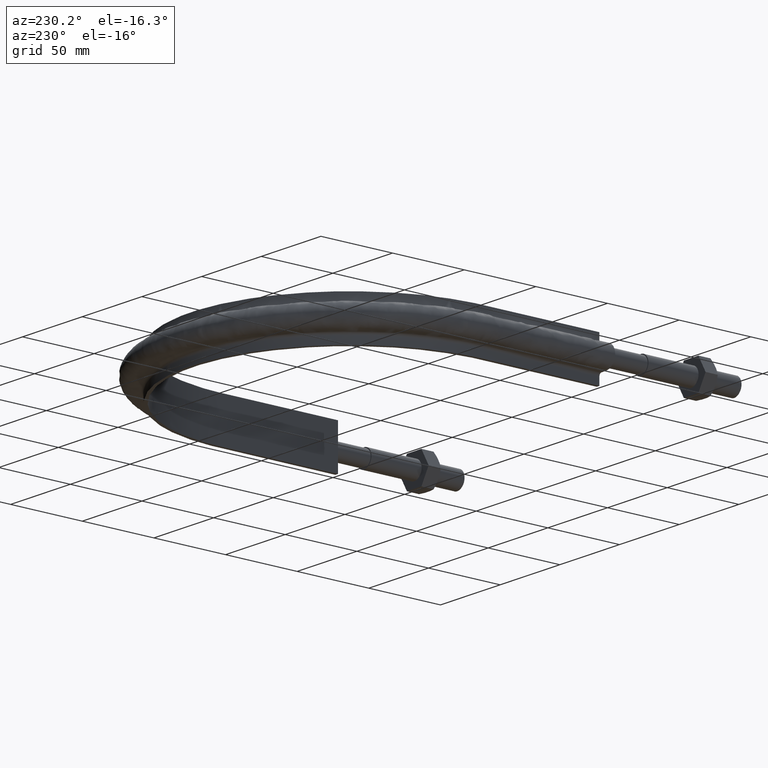
[diagram: clean part render]
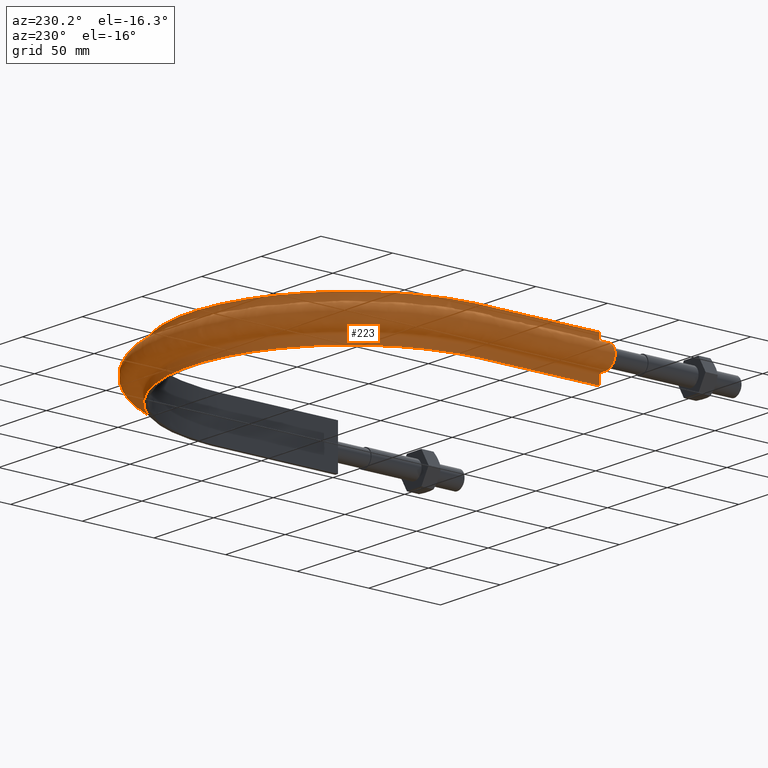
[diagram: same view with one face highlighted and labeled with its STEP entity id]
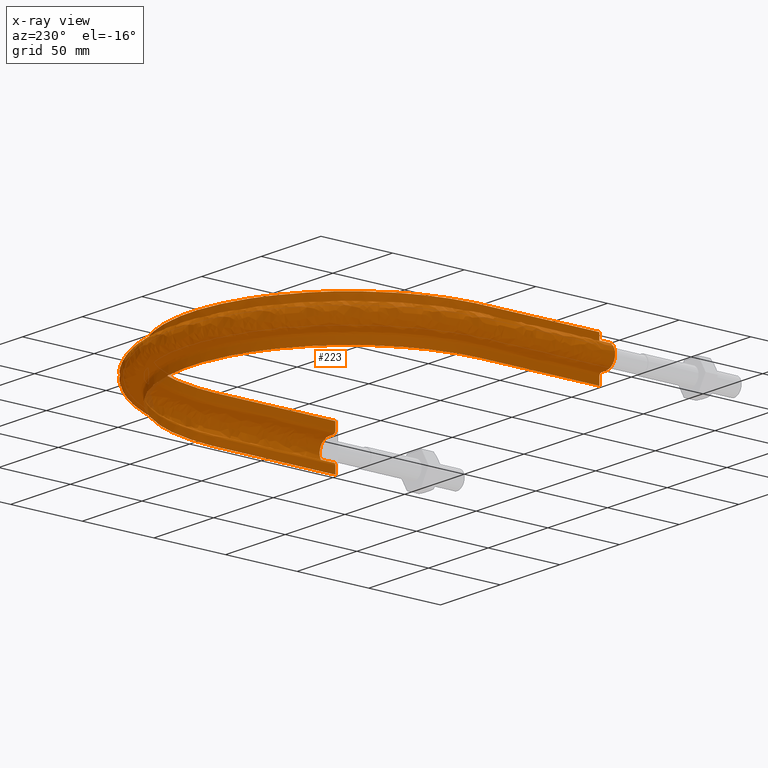
[diagram: x-ray of the same camera — body ghosted, the highlighted face saturated]
A machine part, auxiliary view. The second image highlights one B-rep face of the part: STEP entity #223.
The next image is the same camera in x-ray: the body ghosted, the highlighted face saturated — about 0% of this face is hidden behind the body in this view.
In plain terms, the highlighted face is a freeform B-spline surface patch.
Its self-contained STEP definition (entity closure, byte-faithful):
#223 = ADVANCED_FACE( '', ( #269 ), #270, .F. );
#269 = FACE_OUTER_BOUND( '', #372, .T. );
#270 = B_SPLINE_SURFACE_WITH_KNOTS( '', 3, 3, ( ( #373, #374, #375, #376, #377, #378, #379, #380, #381, #382, #383, #384, #385, #386, #387, #388, #389 ), ( #390, #391, #392, #393, #394, #395, #396, #397, #398, #399, #400, #401, #402, #403, #404, #405, #406 ), ( #407, #408, #409, #410, #411, #412, #413, #414, #415, #416, #417, #418, #419, #420, #421, #422, #423 ), ( #424, #425, #426, #427, #428, #429, #430, #431, #432, #433, #434, #435, #436, #437, #438, #439, #440 ), ( #441, #442, #443, #444, #445, #446, #447, #448, #449, #450, #451, #452, #453, #454, #455, #456, #457 ), ( #458, #459, #460, #461, #462, #463, #464, #465, #466, #467, #468, #469, #470, #471, #472, #473, #474 ), ( #475, #476, #477, #478, #479, #480, #481, #482, #483, #484, #485, #486, #487, #488, #489, #490, #491 ), ( #492, #493, #494, #495, #496, #497, #498, #499, #500, #501, #502, #503, #504, #505, #506, #507, #508 ), ( #509, #510, #511, #512, #513, #514, #515, #516, #517, #518, #519, #520, #521, #522, #523, #524, #525 ), ( #526, #527, #528, #529, #530, #531, #532, #533, #534, #535, #536, #537, #538, #539, #540, #541, #542 ), ( #543, #544, #545, #546, #547, #548, #549, #550, #551, #552, #553, #554, #555, #556, #557, #558, #559 ), ( #560, #561, #562, #563, #564, #565, #566, #567, #568, #569, #570, #571, #572, #573, #574, #575, #576 ), ( #577, #578, #579, #580, #581, #582, #583, #584, #585, #586, #587, #588, #589, #590, #591, #592, #593 ), ( #594, #595, #596, #597, #598, #599, #600, #601, #602, #603, #604, #605, #606, #607, #608, #609, #610 ), ( #611, #612, #613, #614, #615, #616, #617, #618, #619, #620, #621, #622, #623, #624, #625, #626, #627 ), ( #628, #629, #630, #631, #632, #633, #634, #635, #636, #637, #638, #639, #640, #641, #642, #643, #644 ), ( #645, #646, #647, #648, #649, #650, #651, #652, #653, #654, #655, #656, #657, #658, #659, #660, #661 ), ( #662, #663, #664, #665, #666, #667, #668, #669, #670, #671, #672, #673, #674, #675, #676, #677, #678 ), ( #679, #680, #681, #682, #683, #684, #685, #686, #687, #688, #689, #690, #691, #692, #693, #694, #695 ), ( #696, #697, #698, #699, #700, #701, #702, #703, #704, #705, #706, #707, #708, #709, #710, #711, #712 ), ( #713, #714, #715, #716, #717, #718, #719, #720, #721, #722, #723, #724, #725, #726, #727, #728, #729 ), ( #730, #731, #732, #733, #734, #735, #736, #737, #738, #739, #740, #741, #742, #743, #744, #745, #746 ), ( #747, #748, #749, #750, #751, #752, #753, #754, #755, #756, #757, #758, #759, #760, #761, #762, #763 ), ( #764, #765, #766, #767, #768, #769, #770, #771, #772, #773, #774, #775, #776, #777, #778, #779, #780 ), ( #781, #782, #783, #784, #785, #786, #787, #788, #789, #790, #791, #792, #793, #794, #795, #796, #797 ), ( #798, #799, #800, #801, #802, #803, #804, #805, #806, #807, #808, #809, #810, #811, #812, #813, #814 ), ( #815, #816, #817, #818, #819, #820, #821, #822, #823, #824, #825, #826, #827, #828, #829, #830, #831 ), ( #832, #833, #834, #835, #836, #837, #838, #839, #840, #841, #842, #843, #844, #845, #846, #847, #848 ), ( #849, #850, #851, #852, #853, #854, #855, #856, #857, #858, #859, #860, #861, #862, #863, #864, #865 ), ( #866, #867, #868, #869, #870, #871, #872, #873, #874, #875, #876, #877, #878, #879, #880, #881, #882 ), ( #883, #884, #885, #886, #887, #888, #889, #890, #891, #892, #893, #894, #895, #896, #897, #898, #899 ) ), .UNSPECIFIED., .F., .F., .F., ( 4, 3, 1, 1, 1, 3, 3, 1, 1, 1, 3, 3, 1, 1, 1, 3, 4 ), ( 4, 3, 1, 1, 1, 1, 1, 1, 1, 3, 4 ), ( 0.105263157894737, 0.157894736842105, 0.210526315789474, 0.263157894736842, 0.315789473684211, 0.368421052631579, 0.421052631578947, 0.473684210526316, 0.526315789473684, 0.578947368421053, 0.631578947368421, 0.684210526315789, 0.736842105263158, 0.789473684210526, 0.842105263157895, 0.894736842105263, 0.947368421052632 ), ( 0.000000000000000, 1.00000000000000, 2.00000000000000, 3.00000000000000, 4.00000000000000, 5.00000000000000, 6.00000000000000, 7.00000000000000, 8.00000000000000, 9.00000000000000, 10.0000000000000 ), .UNSPECIFIED. );
#372 = EDGE_LOOP( '', ( #1407, #1408, #1409, #1410 ) );
#373 = CARTESIAN_POINT( '', ( 110.600000000000, 89.5000000000000, -15.0000000000000 ) );
#374 = CARTESIAN_POINT( '', ( 110.600000000000, 116.866666666667, -15.0000000000000 ) );
#375 = CARTESIAN_POINT( '', ( 110.600000000000, 144.233333333333, -15.0000000000000 ) );
#376 = CARTESIAN_POINT( '', ( 110.600000000000, 171.600000000000, -15.0000000000000 ) );
#377 = CARTESIAN_POINT( '', ( 110.600000000000, 186.066236657480, -15.0000000000000 ) );
#378 = CARTESIAN_POINT( '', ( 104.841264996974, 215.031001602308, -15.0000000000000 ) );
#379 = CARTESIAN_POINT( '', ( 80.2420302850801, 251.840865123178, -15.0000000000000 ) );
#380 = CARTESIAN_POINT( '', ( 43.4266738580984, 276.441597900375, -15.0000000000000 ) );
#381 = CARTESIAN_POINT( '', ( 8.69526843741250E-014, 285.079201049813, -15.0000000000000 ) );
#382 = CARTESIAN_POINT( '', ( -43.4266738580983, 276.441597900375, -15.0000000000000 ) );
#383 = CARTESIAN_POINT( '', ( -80.2420302850801, 251.840865123178, -15.0000000000000 ) );
#384 = CARTESIAN_POINT( '', ( -104.841264996974, 215.031001602308, -15.0000000000000 ) );
#385 = CARTESIAN_POINT( '', ( -110.600000000000, 186.066236657480, -15.0000000000000 ) );
#386 = CARTESIAN_POINT( '', ( -110.600000000000, 171.600000000000, -15.0000000000000 ) );
#387 = CARTESIAN_POINT( '', ( -110.600000000000, 144.233333333333, -15.0000000000000 ) );
#388 = CARTESIAN_POINT( '', ( -110.600000000000, 116.866666666667, -15.0000000000000 ) );
#389 = CARTESIAN_POINT( '', ( -110.600000000000, 89.5000000000001, -15.0000000000000 ) );
#390 = CARTESIAN_POINT( '', ( 110.600000000000, 89.5000000000000, -13.2666666666667 ) );
#391 = CARTESIAN_POINT( '', ( 110.600000000000, 116.866666666667, -13.2666666666667 ) );
#392 = CARTESIAN_POINT( '', ( 110.600000000000, 144.233333333333, -13.2666666666667 ) );
#393 = CARTESIAN_POINT( '', ( 110.600000000000, 171.600000000000, -13.2666666666667 ) );
#394 = CARTESIAN_POINT( '', ( 110.600000000000, 186.066236657480, -13.2666666666667 ) );
#395 = CARTESIAN_POINT( '', ( 104.841264996974, 215.031001602308, -13.2666666666667 ) );
#396 = CARTESIAN_POINT( '', ( 80.2420302850802, 251.840865123178, -13.2666666666667 ) );
#397 = CARTESIAN_POINT( '', ( 43.4266738580984, 276.441597900375, -13.2666666666667 ) );
#398 = CARTESIAN_POINT( '', ( 8.86874078501018E-014, 285.079201049813, -13.2666666666667 ) );
#399 = CARTESIAN_POINT( '', ( -43.4266738580984, 276.441597900375, -13.2666666666667 ) );
#400 = CARTESIAN_POINT( '', ( -80.2420302850801, 251.840865123178, -13.2666666666667 ) );
#401 = CARTESIAN_POINT( '', ( -104.841264996974, 215.031001602308, -13.2666666666667 ) );
#402 = CARTESIAN_POINT( '', ( -110.600000000000, 186.066236657480, -13.2666666666667 ) );
#403 = CARTESIAN_POINT( '', ( -110.600000000000, 171.600000000000, -13.2666666666667 ) );
#404 = CARTESIAN_POINT( '', ( -110.600000000000, 144.233333333333, -13.2666666666667 ) );
#405 = CARTESIAN_POINT( '', ( -110.600000000000, 116.866666666667, -13.2666666666667 ) );
#406 = CARTESIAN_POINT( '', ( -110.600000000000, 89.5000000000001, -13.2666666666667 ) );
#407 = CARTESIAN_POINT( '', ( 110.600000000000, 89.5000000000000, -11.5333333333333 ) );
#408 = CARTESIAN_POINT( '', ( 110.600000000000, 116.866666666667, -11.5333333333333 ) );
#409 = CARTESIAN_POINT( '', ( 110.600000000000, 144.233333333333, -11.5333333333333 ) );
#410 = CARTESIAN_POINT( '', ( 110.600000000000, 171.600000000000, -11.5333333333333 ) );
#411 = CARTESIAN_POINT( '', ( 110.600000000000, 186.066236657480, -11.5333333333333 ) );
#412 = CARTESIAN_POINT( '', ( 104.841264996974, 215.031001602308, -11.5333333333333 ) );
#413 = CARTESIAN_POINT( '', ( 80.2420302850802, 251.840865123178, -11.5333333333333 ) );
#414 = CARTESIAN_POINT( '', ( 43.4266738580984, 276.441597900375, -11.5333333333333 ) );
#415 = CARTESIAN_POINT( '', ( 8.34832374221713E-014, 285.079201049813, -11.5333333333333 ) );
#416 = CARTESIAN_POINT( '', ( -43.4266738580983, 276.441597900375, -11.5333333333333 ) );
#417 = CARTESIAN_POINT( '', ( -80.2420302850801, 251.840865123178, -11.5333333333333 ) );
#418 = CARTESIAN_POINT( '', ( -104.841264996974, 215.031001602308, -11.5333333333333 ) );
#419 = CARTESIAN_POINT( '', ( -110.600000000000, 186.066236657480, -11.5333333333333 ) );
#420 = CARTESIAN_POINT( '', ( -110.600000000000, 171.600000000000, -11.5333333333333 ) );
#421 = CARTESIAN_POINT( '', ( -110.600000000000, 144.233333333333, -11.5333333333333 ) );
#422 = CARTESIAN_POINT( '', ( -110.600000000000, 116.866666666667, -11.5333333333333 ) );
#423 = CARTESIAN_POINT( '', ( -110.600000000000, 89.5000000000001, -11.5333333333333 ) );
#424 = CARTESIAN_POINT( '', ( 110.600000000000, 89.5000000000000, -9.79999999999999 ) );
#425 = CARTESIAN_POINT( '', ( 110.600000000000, 116.866666666667, -9.79999999999999 ) );
#426 = CARTESIAN_POINT( '', ( 110.600000000000, 144.233333333333, -9.79999999999999 ) );
#427 = CARTESIAN_POINT( '', ( 110.600000000000, 171.600000000000, -9.79999999999999 ) );
#428 = CARTESIAN_POINT( '', ( 110.600000000000, 186.066236657480, -9.79999999999999 ) );
#429 = CARTESIAN_POINT( '', ( 104.841264996974, 215.031001602308, -9.79999999999999 ) );
#430 = CARTESIAN_POINT( '', ( 80.2420302850802, 251.840865123178, -9.79999999999999 ) );
#431 = CARTESIAN_POINT( '', ( 43.4266738580984, 276.441597900375, -9.80000000000000 ) );
#432 = CARTESIAN_POINT( '', ( 8.00137904702177E-014, 285.079201049813, -9.79999999999999 ) );
#433 = CARTESIAN_POINT( '', ( -43.4266738580983, 276.441597900375, -9.79999999999999 ) );
#434 = CARTESIAN_POINT( '', ( -80.2420302850801, 251.840865123178, -9.79999999999999 ) );
#435 = CARTESIAN_POINT( '', ( -104.841264996974, 215.031001602308, -9.79999999999999 ) );
#436 = CARTESIAN_POINT( '', ( -110.600000000000, 186.066236657480, -9.79999999999999 ) );
#437 = CARTESIAN_POINT( '', ( -110.600000000000, 171.600000000000, -9.79999999999999 ) );
#438 = CARTESIAN_POINT( '', ( -110.600000000000, 144.233333333333, -9.79999999999999 ) );
#439 = CARTESIAN_POINT( '', ( -110.600000000000, 116.866666666667, -9.79999999999999 ) );
#440 = CARTESIAN_POINT( '', ( -110.600000000000, 89.5000000000001, -9.79999999999999 ) );
#441 = CARTESIAN_POINT( '', ( 110.600000000000, 89.5000000000000, -9.53823584172332 ) );
#442 = CARTESIAN_POINT( '', ( 110.600000000000, 116.866666666667, -9.53823584172332 ) );
#443 = CARTESIAN_POINT( '', ( 110.600000000000, 144.233333333333, -9.53823584172332 ) );
#444 = CARTESIAN_POINT( '', ( 110.600000000000, 171.600000000000, -9.53823584172332 ) );
#445 = CARTESIAN_POINT( '', ( 110.600000000000, 186.066236657480, -9.53823584172332 ) );
#446 = CARTESIAN_POINT( '', ( 104.841264996974, 215.031001602308, -9.53823584172333 ) );
#447 = CARTESIAN_POINT( '', ( 80.2420302850802, 251.840865123178, -9.53823584172332 ) );
#448 = CARTESIAN_POINT( '', ( 43.4266738580984, 276.441597900375, -9.53823584172333 ) );
#449 = CARTESIAN_POINT( '', ( 8.34832374221713E-014, 285.079201049813, -9.53823584172332 ) );
#450 = CARTESIAN_POINT( '', ( -43.4266738580983, 276.441597900375, -9.53823584172332 ) );
#451 = CARTESIAN_POINT( '', ( -80.2420302850801, 251.840865123178, -9.53823584172333 ) );
#452 = CARTESIAN_POINT( '', ( -104.841264996974, 215.031001602308, -9.53823584172333 ) );
#453 = CARTESIAN_POINT( '', ( -110.600000000000, 186.066236657480, -9.53823584172332 ) );
#454 = CARTESIAN_POINT( '', ( -110.600000000000, 171.600000000000, -9.53823584172332 ) );
#455 = CARTESIAN_POINT( '', ( -110.600000000000, 144.233333333333, -9.53823584172332 ) );
#456 = CARTESIAN_POINT( '', ( -110.600000000000, 116.866666666667, -9.53823584172332 ) );
#457 = CARTESIAN_POINT( '', ( -110.600000000000, 89.5000000000001, -9.53823584172332 ) );
#458 = CARTESIAN_POINT( '', ( 110.704136256836, 89.5000000000000, -9.01470752517000 ) );
#459 = CARTESIAN_POINT( '', ( 110.704136256836, 116.866666666667, -9.01470752517000 ) );
#460 = CARTESIAN_POINT( '', ( 110.704136256836, 144.233333333333, -9.01470752517000 ) );
#461 = CARTESIAN_POINT( '', ( 110.704136256836, 171.600000000000, -9.01470752517000 ) );
#462 = CARTESIAN_POINT( '', ( 110.704136256836, 186.080045983731, -9.01470752517000 ) );
#463 = CARTESIAN_POINT( '', ( 104.939979073816, 215.071806853384, -9.01470752517000 ) );
#464 = CARTESIAN_POINT( '', ( 80.3175827685775, 251.916440076230, -9.01470752517000 ) );
#465 = CARTESIAN_POINT( '', ( 43.4675625675235, 276.540305557344, -9.01470752517000 ) );
#466 = CARTESIAN_POINT( '', ( 8.69657693611979E-014, 285.186051606582, -9.01470752517000 ) );
#467 = CARTESIAN_POINT( '', ( -43.4675625675235, 276.540305557344, -9.01470752517000 ) );
#468 = CARTESIAN_POINT( '', ( -80.3175827685774, 251.916440076230, -9.01470752517000 ) );
#469 = CARTESIAN_POINT( '', ( -104.939979073816, 215.071806853384, -9.01470752517000 ) );
#470 = CARTESIAN_POINT( '', ( -110.704136256836, 186.080045983731, -9.01470752517000 ) );
#471 = CARTESIAN_POINT( '', ( -110.704136256836, 171.600000000000, -9.01470752517000 ) );
#472 = CARTESIAN_POINT( '', ( -110.704136256836, 144.233333333333, -9.01470752517000 ) );
#473 = CARTESIAN_POINT( '', ( -110.704136256836, 116.866666666667, -9.01470752517000 ) );
#474 = CARTESIAN_POINT( '', ( -110.704136256836, 89.5000000000001, -9.01470752517000 ) );
#475 = CARTESIAN_POINT( '', ( 111.148968710939, 89.5000000000000, -8.34896871093886 ) );
#476 = CARTESIAN_POINT( '', ( 111.148968710939, 116.866666666667, -8.34896871093886 ) );
#477 = CARTESIAN_POINT( '', ( 111.148968710939, 144.233333333333, -8.34896871093886 ) );
#478 = CARTESIAN_POINT( '', ( 111.148968710939, 171.600000000000, -8.34896871093886 ) );
#479 = CARTESIAN_POINT( '', ( 111.148968710939, 186.139034434753, -8.34896871093886 ) );
#480 = CARTESIAN_POINT( '', ( 105.361649934575, 215.246112138864, -8.34896871093887 ) );
#481 = CARTESIAN_POINT( '', ( 80.6403156732241, 252.239268962697, -8.34896871093886 ) );
#482 = CARTESIAN_POINT( '', ( 43.6422243569071, 276.961948994725, -8.34896871093887 ) );
#483 = CARTESIAN_POINT( '', ( 8.18174932690964E-014, 285.642478569046, -8.34896871093886 ) );
#484 = CARTESIAN_POINT( '', ( -43.6422243569071, 276.961948994725, -8.34896871093886 ) );
#485 = CARTESIAN_POINT( '', ( -80.6403156732240, 252.239268962697, -8.34896871093887 ) );
#486 = CARTESIAN_POINT( '', ( -105.361649934575, 215.246112138864, -8.34896871093886 ) );
#487 = CARTESIAN_POINT( '', ( -111.148968710939, 186.139034434753, -8.34896871093886 ) );
#488 = CARTESIAN_POINT( '', ( -111.148968710939, 171.600000000000, -8.34896871093886 ) );
#489 = CARTESIAN_POINT( '', ( -111.148968710939, 144.233333333333, -8.34896871093886 ) );
#490 = CARTESIAN_POINT( '', ( -111.148968710939, 116.866666666667, -8.34896871093886 ) );
#491 = CARTESIAN_POINT( '', ( -111.148968710939, 89.5000000000001, -8.34896871093886 ) );
#492 = CARTESIAN_POINT( '', ( 111.814707525170, 89.5000000000000, -7.90413625683590 ) );
#493 = CARTESIAN_POINT( '', ( 111.814707525170, 116.866666666667, -7.90413625683590 ) );
#494 = CARTESIAN_POINT( '', ( 111.814707525170, 144.233333333333, -7.90413625683590 ) );
#495 = CARTESIAN_POINT( '', ( 111.814707525170, 171.600000000000, -7.90413625683590 ) );
#496 = CARTESIAN_POINT( '', ( 111.814707525170, 186.227316890483, -7.90413625683590 ) );
#497 = CARTESIAN_POINT( '', ( 105.992724974734, 215.506978433578, -7.90413625683590 ) );
#498 = CARTESIAN_POINT( '', ( 81.1233195981200, 252.722416534538, -7.90413625683590 ) );
#499 = CARTESIAN_POINT( '', ( 43.9036241974161, 277.592982992900, -7.90413625683590 ) );
#500 = CARTESIAN_POINT( '', ( 8.01664215782215E-014, 286.325569791305, -7.90413625683590 ) );
#501 = CARTESIAN_POINT( '', ( -43.9036241974160, 277.592982992900, -7.90413625683589 ) );
#502 = CARTESIAN_POINT( '', ( -81.1233195981199, 252.722416534538, -7.90413625683590 ) );
#503 = CARTESIAN_POINT( '', ( -105.992724974733, 215.506978433578, -7.90413625683590 ) );
#504 = CARTESIAN_POINT( '', ( -111.814707525170, 186.227316890483, -7.90413625683590 ) );
#505 = CARTESIAN_POINT( '', ( -111.814707525170, 171.600000000000, -7.90413625683590 ) );
#506 = CARTESIAN_POINT( '', ( -111.814707525170, 144.233333333333, -7.90413625683590 ) );
#507 = CARTESIAN_POINT( '', ( -111.814707525170, 116.866666666667, -7.90413625683590 ) );
#508 = CARTESIAN_POINT( '', ( -111.814707525170, 89.5000000000001, -7.90413625683590 ) );
#509 = CARTESIAN_POINT( '', ( 112.338235841723, 89.5000000000000, -7.79999999999999 ) );
#510 = CARTESIAN_POINT( '', ( 112.338235841723, 116.866666666667, -7.79999999999999 ) );
#511 = CARTESIAN_POINT( '', ( 112.338235841723, 144.233333333333, -7.79999999999999 ) );
#512 = CARTESIAN_POINT( '', ( 112.338235841723, 171.600000000000, -7.79999999999999 ) );
#513 = CARTESIAN_POINT( '', ( 112.338235841723, 186.296741061707, -7.79999999999999 ) );
#514 = CARTESIAN_POINT( '', ( 106.488994151670, 215.712120283800, -7.79999999999999 ) );
#515 = CARTESIAN_POINT( '', ( 81.5031475821342, 253.102357480635, -7.79999999999999 ) );
#516 = CARTESIAN_POINT( '', ( 44.1091856210909, 278.089219894955, -7.79999999999999 ) );
#517 = CARTESIAN_POINT( '', ( 7.50280338225567E-014, 286.862743815107, -7.79999999999999 ) );
#518 = CARTESIAN_POINT( '', ( -44.1091856210909, 278.089219894955, -7.79999999999998 ) );
#519 = CARTESIAN_POINT( '', ( -81.5031475821342, 253.102357480635, -7.79999999999999 ) );
#520 = CARTESIAN_POINT( '', ( -106.488994151670, 215.712120283800, -7.79999999999999 ) );
#521 = CARTESIAN_POINT( '', ( -112.338235841723, 186.296741061707, -7.79999999999999 ) );
#522 = CARTESIAN_POINT( '', ( -112.338235841723, 171.600000000000, -7.79999999999999 ) );
#523 = CARTESIAN_POINT( '', ( -112.338235841723, 144.233333333333, -7.79999999999999 ) );
#524 = CARTESIAN_POINT( '', ( -112.338235841723, 116.866666666667, -7.79999999999999 ) );
#525 = CARTESIAN_POINT( '', ( -112.338235841723, 89.5000000000001, -7.79999999999999 ) );
#526 = CARTESIAN_POINT( '', ( 112.600000000000, 89.5000000000000, -7.79999999999999 ) );
#527 = CARTESIAN_POINT( '', ( 112.600000000000, 116.866666666667, -7.79999999999999 ) );
#528 = CARTESIAN_POINT( '', ( 112.600000000000, 144.233333333333, -7.79999999999999 ) );
#529 = CARTESIAN_POINT( '', ( 112.600000000000, 171.600000000000, -7.79999999999999 ) );
#530 = CARTESIAN_POINT( '', ( 112.600000000000, 186.331453147319, -7.79999999999999 ) );
#531 = CARTESIAN_POINT( '', ( 106.737128740138, 215.814691208912, -7.79999999999999 ) );
#532 = CARTESIAN_POINT( '', ( 81.6930615741413, 253.292327953684, -7.79999999999999 ) );
#533 = CARTESIAN_POINT( '', ( 44.2119663329284, 278.337338345983, -7.79999999999999 ) );
#534 = CARTESIAN_POINT( '', ( 7.85303721106431E-014, 287.131330827008, -7.79999999999998 ) );
#535 = CARTESIAN_POINT( '', ( -44.2119663329283, 278.337338345983, -7.79999999999998 ) );
#536 = CARTESIAN_POINT( '', ( -81.6930615741412, 253.292327953684, -7.79999999999999 ) );
#537 = CARTESIAN_POINT( '', ( -106.737128740138, 215.814691208912, -7.79999999999999 ) );
#538 = CARTESIAN_POINT( '', ( -112.600000000000, 186.331453147319, -7.79999999999999 ) );
#539 = CARTESIAN_POINT( '', ( -112.600000000000, 171.600000000000, -7.79999999999999 ) );
#540 = CARTESIAN_POINT( '', ( -112.600000000000, 144.233333333333, -7.79999999999999 ) );
#541 = CARTESIAN_POINT( '', ( -112.600000000000, 116.866666666667, -7.79999999999999 ) );
#542 = CARTESIAN_POINT( '', ( -112.600000000000, 89.5000000000001, -7.79999999999999 ) );
#543 = CARTESIAN_POINT( '', ( 113.733333333333, 89.5000000000000, -7.79999999999999 ) );
#544 = CARTESIAN_POINT( '', ( 113.733333333333, 116.866666666667, -7.79999999999999 ) );
#545 = CARTESIAN_POINT( '', ( 113.733333333333, 144.233333333333, -7.79999999999999 ) );
#546 = CARTESIAN_POINT( '', ( 113.733333333333, 171.600000000000, -7.79999999999999 ) );
#547 = CARTESIAN_POINT( '', ( 113.733333333333, 186.481742491562, -7.79999999999999 ) );
#548 = CARTESIAN_POINT( '', ( 107.811451527931, 216.258781985988, -7.80000000000000 ) );
#549 = CARTESIAN_POINT( '', ( 82.5153126379426, 254.114823557638, -7.79999999999999 ) );
#550 = CARTESIAN_POINT( '', ( 44.6569654019987, 279.411591265161, -7.80000000000000 ) );
#551 = CARTESIAN_POINT( '', ( 8.56116722471783E-014, 288.294204367419, -7.79999999999999 ) );
#552 = CARTESIAN_POINT( '', ( -44.6569654019987, 279.411591265161, -7.79999999999999 ) );
#553 = CARTESIAN_POINT( '', ( -82.5153126379425, 254.114823557638, -7.80000000000000 ) );
#554 = CARTESIAN_POINT( '', ( -107.811451527931, 216.258781985988, -7.79999999999999 ) );
#555 = CARTESIAN_POINT( '', ( -113.733333333333, 186.481742491562, -7.79999999999999 ) );
#556 = CARTESIAN_POINT( '', ( -113.733333333333, 171.600000000000, -7.79999999999999 ) );
#557 = CARTESIAN_POINT( '', ( -113.733333333333, 144.233333333333, -7.79999999999999 ) );
#558 = CARTESIAN_POINT( '', ( -113.733333333333, 116.866666666667, -7.79999999999999 ) );
#559 = CARTESIAN_POINT( '', ( -113.733333333333, 89.5000000000001, -7.79999999999999 ) );
#560 = CARTESIAN_POINT( '', ( 114.866666666667, 89.5000000000000, -7.79999999999999 ) );
#561 = CARTESIAN_POINT( '', ( 114.866666666667, 116.866666666667, -7.79999999999999 ) );
#562 = CARTESIAN_POINT( '', ( 114.866666666667, 144.233333333333, -7.79999999999999 ) );
#563 = CARTESIAN_POINT( '', ( 114.866666666667, 171.600000000000, -7.79999999999999 ) );
#564 = CARTESIAN_POINT( '', ( 114.866666666667, 186.632031835804, -7.79999999999999 ) );
#565 = CARTESIAN_POINT( '', ( 108.885774315724, 216.702872763064, -7.80000000000000 ) );
#566 = CARTESIAN_POINT( '', ( 83.3375637017439, 254.937319161592, -7.79999999999999 ) );
#567 = CARTESIAN_POINT( '', ( 45.1019644710690, 280.485844184339, -7.80000000000000 ) );
#568 = CARTESIAN_POINT( '', ( 8.40193550038294E-014, 289.457077907830, -7.79999999999999 ) );
#569 = CARTESIAN_POINT( '', ( -45.1019644710690, 280.485844184339, -7.79999999999999 ) );
#570 = CARTESIAN_POINT( '', ( -83.3375637017439, 254.937319161591, -7.80000000000000 ) );
#571 = CARTESIAN_POINT( '', ( -108.885774315724, 216.702872763064, -7.79999999999999 ) );
#572 = CARTESIAN_POINT( '', ( -114.866666666667, 186.632031835804, -7.79999999999999 ) );
#573 = CARTESIAN_POINT( '', ( -114.866666666667, 171.600000000000, -7.79999999999999 ) );
#574 = CARTESIAN_POINT( '', ( -114.866666666667, 144.233333333333, -7.79999999999999 ) );
#575 = CARTESIAN_POINT( '', ( -114.866666666667, 116.866666666667, -7.79999999999999 ) );
#576 = CARTESIAN_POINT( '', ( -114.866666666667, 89.5000000000001, -7.79999999999999 ) );
#577 = CARTESIAN_POINT( '', ( 116.000000000000, 89.5000000000000, -7.79999999999999 ) );
#578 = CARTESIAN_POINT( '', ( 116.000000000000, 116.866666666667, -7.79999999999999 ) );
#579 = CARTESIAN_POINT( '', ( 116.000000000000, 144.233333333333, -7.79999999999999 ) );
#580 = CARTESIAN_POINT( '', ( 116.000000000000, 171.600000000000, -7.79999999999999 ) );
#581 = CARTESIAN_POINT( '', ( 116.000000000000, 186.782321180046, -7.79999999999999 ) );
#582 = CARTESIAN_POINT( '', ( 109.960097103517, 217.146963540139, -7.80000000000000 ) );
#583 = CARTESIAN_POINT( '', ( 84.1598147655452, 255.759814765545, -7.79999999999999 ) );
#584 = CARTESIAN_POINT( '', ( 45.5469635401394, 281.560097103517, -7.80000000000000 ) );
#585 = CARTESIAN_POINT( '', ( 8.41617612364573E-014, 290.619951448241, -7.79999999999999 ) );
#586 = CARTESIAN_POINT( '', ( -45.5469635401393, 281.560097103517, -7.79999999999999 ) );
#587 = CARTESIAN_POINT( '', ( -84.1598147655451, 255.759814765545, -7.80000000000000 ) );
#588 = CARTESIAN_POINT( '', ( -109.960097103517, 217.146963540139, -7.79999999999999 ) );
#589 = CARTESIAN_POINT( '', ( -116.000000000000, 186.782321180046, -7.79999999999999 ) );
#590 = CARTESIAN_POINT( '', ( -116.000000000000, 171.600000000000, -7.79999999999999 ) );
#591 = CARTESIAN_POINT( '', ( -116.000000000000, 144.233333333333, -7.79999999999999 ) );
#592 = CARTESIAN_POINT( '', ( -116.000000000000, 116.866666666667, -7.79999999999999 ) );
#593 = CARTESIAN_POINT( '', ( -116.000000000000, 89.5000000000001, -7.79999999999999 ) );
#594 = CARTESIAN_POINT( '', ( 118.037390224717, 89.5000000000000, -7.79999999999998 ) );
#595 = CARTESIAN_POINT( '', ( 118.037390224717, 116.866666666667, -7.79999999999998 ) );
#596 = CARTESIAN_POINT( '', ( 118.037390224717, 144.233333333333, -7.79999999999998 ) );
#597 = CARTESIAN_POINT( '', ( 118.037390224717, 171.600000000000, -7.79999999999998 ) );
#598 = CARTESIAN_POINT( '', ( 118.037390224717, 187.052495921963, -7.79999999999998 ) );
#599 = CARTESIAN_POINT( '', ( 111.891404232376, 217.945304311993, -7.79999999999998 ) );
#600 = CARTESIAN_POINT( '', ( 85.6379732475911, 257.238412856752, -7.79999999999998 ) );
#601 = CARTESIAN_POINT( '', ( 46.3469371460206, 283.491278629759, -7.79999999999998 ) );
#602 = CARTESIAN_POINT( '', ( 7.57441471503629E-014, 292.710446022196, -7.79999999999998 ) );
#603 = CARTESIAN_POINT( '', ( -46.3469371460206, 283.491278629759, -7.79999999999997 ) );
#604 = CARTESIAN_POINT( '', ( -85.6379732475911, 257.238412856752, -7.79999999999998 ) );
#605 = CARTESIAN_POINT( '', ( -111.891404232376, 217.945304311993, -7.79999999999998 ) );
#606 = CARTESIAN_POINT( '', ( -118.037390224717, 187.052495921963, -7.79999999999998 ) );
#607 = CARTESIAN_POINT( '', ( -118.037390224717, 171.600000000000, -7.79999999999998 ) );
#608 = CARTESIAN_POINT( '', ( -118.037390224717, 144.233333333333, -7.79999999999998 ) );
#609 = CARTESIAN_POINT( '', ( -118.037390224717, 116.866666666667, -7.79999999999998 ) );
#610 = CARTESIAN_POINT( '', ( -118.037390224717, 89.5000000000001, -7.79999999999998 ) );
#611 = CARTESIAN_POINT( '', ( 122.112170674152, 89.5000000000000, -6.11217067415153 ) );
#612 = CARTESIAN_POINT( '', ( 122.112170674152, 116.866666666667, -6.11217067415153 ) );
#613 = CARTESIAN_POINT( '', ( 122.112170674152, 144.233333333333, -6.11217067415153 ) );
#614 = CARTESIAN_POINT( '', ( 122.112170674152, 171.600000000000, -6.11217067415153 ) );
#615 = CARTESIAN_POINT( '', ( 122.112170674152, 187.592845405796, -6.11217067415153 ) );
#616 = CARTESIAN_POINT( '', ( 115.754018490095, 219.541985855702, -6.11217067415154 ) );
#617 = CARTESIAN_POINT( '', ( 88.5942902116830, 260.195609039166, -6.11217067415154 ) );
#618 = CARTESIAN_POINT( '', ( 47.9468843577832, 287.353641682242, -6.11217067415154 ) );
#619 = CARTESIAN_POINT( '', ( 6.58478128820814E-014, 296.891435170106, -6.11217067415153 ) );
#620 = CARTESIAN_POINT( '', ( -47.9468843577832, 287.353641682242, -6.11217067415153 ) );
#621 = CARTESIAN_POINT( '', ( -88.5942902116830, 260.195609039166, -6.11217067415154 ) );
#622 = CARTESIAN_POINT( '', ( -115.754018490095, 219.541985855702, -6.11217067415153 ) );
#623 = CARTESIAN_POINT( '', ( -122.112170674151, 187.592845405796, -6.11217067415153 ) );
#624 = CARTESIAN_POINT( '', ( -122.112170674151, 171.600000000000, -6.11217067415153 ) );
#625 = CARTESIAN_POINT( '', ( -122.112170674151, 144.233333333333, -6.11217067415153 ) );
#626 = CARTESIAN_POINT( '', ( -122.112170674151, 116.866666666667, -6.11217067415153 ) );
#627 = CARTESIAN_POINT( '', ( -122.112170674151, 89.5000000000001, -6.11217067415153 ) );
#628 = CARTESIAN_POINT( '', ( 124.643914662924, 89.5000000000000, 5.06449248730035E-015 ) );
#629 = CARTESIAN_POINT( '', ( 124.643914662924, 116.866666666667, 5.06449248730035E-015 ) );
#630 = CARTESIAN_POINT( '', ( 124.643914662924, 144.233333333333, 5.06449248730035E-015 ) );
#631 = CARTESIAN_POINT( '', ( 124.643914662924, 171.600000000000, 5.06449248730035E-015 ) );
#632 = CARTESIAN_POINT( '', ( 124.643914662924, 187.928575532733, 5.06449248730035E-015 ) );
#633 = CARTESIAN_POINT( '', ( 118.153939307739, 220.534036580994, 5.06449248730035E-015 ) );
#634 = CARTESIAN_POINT( '', ( 90.4311100834838, 262.032975187197, 5.06449248730035E-015 ) );
#635 = CARTESIAN_POINT( '', ( 48.9409641090728, 289.753406420963, 5.06449248730035E-015 ) );
#636 = CARTESIAN_POINT( '', ( 6.96353799429345E-014, 299.489168783905, 5.06449248730035E-015 ) );
#637 = CARTESIAN_POINT( '', ( -48.9409641090728, 289.753406420963, 5.06449248730035E-015 ) );
#638 = CARTESIAN_POINT( '', ( -90.4311100834838, 262.032975187197, 5.06449248730035E-015 ) );
#639 = CARTESIAN_POINT( '', ( -118.153939307738, 220.534036580994, 5.06449248730035E-015 ) );
#640 = CARTESIAN_POINT( '', ( -124.643914662924, 187.928575532733, 5.06449248730035E-015 ) );
#641 = CARTESIAN_POINT( '', ( -124.643914662924, 171.600000000000, 5.06449248730035E-015 ) );
#642 = CARTESIAN_POINT( '', ( -124.643914662924, 144.233333333333, 5.06449248730035E-015 ) );
#643 = CARTESIAN_POINT( '', ( -124.643914662924, 116.866666666667, 5.06449248730035E-015 ) );
#644 = CARTESIAN_POINT( '', ( -124.643914662924, 89.5000000000001, 5.06449248730035E-015 ) );
#645 = CARTESIAN_POINT( '', ( 122.112170674152, 89.5000000000000, 6.11217067415154 ) );
#646 = CARTESIAN_POINT( '', ( 122.112170674152, 116.866666666667, 6.11217067415154 ) );
#647 = CARTESIAN_POINT( '', ( 122.112170674152, 144.233333333333, 6.11217067415154 ) );
#648 = CARTESIAN_POINT( '', ( 122.112170674152, 171.600000000000, 6.11217067415154 ) );
#649 = CARTESIAN_POINT( '', ( 122.112170674152, 187.592845405796, 6.11217067415154 ) );
#650 = CARTESIAN_POINT( '', ( 115.754018490095, 219.541985855702, 6.11217067415155 ) );
#651 = CARTESIAN_POINT( '', ( 88.5942902116830, 260.195609039166, 6.11217067415155 ) );
#652 = CARTESIAN_POINT( '', ( 47.9468843577832, 287.353641682242, 6.11217067415155 ) );
#653 = CARTESIAN_POINT( '', ( 6.93172598340350E-014, 296.891435170106, 6.11217067415154 ) );
#654 = CARTESIAN_POINT( '', ( -47.9468843577832, 287.353641682242, 6.11217067415154 ) );
#655 = CARTESIAN_POINT( '', ( -88.5942902116830, 260.195609039166, 6.11217067415155 ) );
#656 = CARTESIAN_POINT( '', ( -115.754018490095, 219.541985855702, 6.11217067415154 ) );
#657 = CARTESIAN_POINT( '', ( -122.112170674151, 187.592845405796, 6.11217067415154 ) );
#658 = CARTESIAN_POINT( '', ( -122.112170674151, 171.600000000000, 6.11217067415154 ) );
#659 = CARTESIAN_POINT( '', ( -122.112170674151, 144.233333333333, 6.11217067415154 ) );
#660 = CARTESIAN_POINT( '', ( -122.112170674151, 116.866666666667, 6.11217067415154 ) );
#661 = CARTESIAN_POINT( '', ( -122.112170674151, 89.5000000000001, 6.11217067415154 ) );
#662 = CARTESIAN_POINT( '', ( 118.037390224717, 89.5000000000000, 7.79999999999999 ) );
#663 = CARTESIAN_POINT( '', ( 118.037390224717, 116.866666666667, 7.79999999999999 ) );
#664 = CARTESIAN_POINT( '', ( 118.037390224717, 144.233333333333, 7.79999999999999 ) );
#665 = CARTESIAN_POINT( '', ( 118.037390224717, 171.600000000000, 7.79999999999999 ) );
#666 = CARTESIAN_POINT( '', ( 118.037390224717, 187.052495921963, 7.79999999999999 ) );
#667 = CARTESIAN_POINT( '', ( 111.891404232376, 217.945304311993, 7.79999999999999 ) );
#668 = CARTESIAN_POINT( '', ( 85.6379732475911, 257.238412856752, 7.79999999999999 ) );
#669 = CARTESIAN_POINT( '', ( 46.3469371460206, 283.491278629759, 7.80000000000000 ) );
#670 = CARTESIAN_POINT( '', ( 7.57441471503629E-014, 292.710446022196, 7.79999999999999 ) );
#671 = CARTESIAN_POINT( '', ( -46.3469371460206, 283.491278629759, 7.79999999999999 ) );
#672 = CARTESIAN_POINT( '', ( -85.6379732475911, 257.238412856752, 7.79999999999999 ) );
#673 = CARTESIAN_POINT( '', ( -111.891404232376, 217.945304311993, 7.79999999999999 ) );
#674 = CARTESIAN_POINT( '', ( -118.037390224717, 187.052495921963, 7.79999999999999 ) );
#675 = CARTESIAN_POINT( '', ( -118.037390224717, 171.600000000000, 7.79999999999999 ) );
#676 = CARTESIAN_POINT( '', ( -118.037390224717, 144.233333333333, 7.79999999999999 ) );
#677 = CARTESIAN_POINT( '', ( -118.037390224717, 116.866666666667, 7.79999999999999 ) );
#678 = CARTESIAN_POINT( '', ( -118.037390224717, 89.5000000000001, 7.79999999999999 ) );
#679 = CARTESIAN_POINT( '', ( 116.000000000000, 89.5000000000000, 7.79999999999999 ) );
#680 = CARTESIAN_POINT( '', ( 116.000000000000, 116.866666666667, 7.79999999999999 ) );
#681 = CARTESIAN_POINT( '', ( 116.000000000000, 144.233333333333, 7.79999999999999 ) );
#682 = CARTESIAN_POINT( '', ( 116.000000000000, 171.600000000000, 7.79999999999999 ) );
#683 = CARTESIAN_POINT( '', ( 116.000000000000, 186.782321180046, 7.79999999999999 ) );
#684 = CARTESIAN_POINT( '', ( 109.960097103517, 217.146963540139, 7.79999999999999 ) );
#685 = CARTESIAN_POINT( '', ( 84.1598147655452, 255.759814765545, 7.79999999999999 ) );
#686 = CARTESIAN_POINT( '', ( 45.5469635401393, 281.560097103517, 7.79999999999999 ) );
#687 = CARTESIAN_POINT( '', ( 7.72228673325501E-014, 290.619951448241, 7.79999999999999 ) );
#688 = CARTESIAN_POINT( '', ( -45.5469635401393, 281.560097103517, 7.79999999999999 ) );
#689 = CARTESIAN_POINT( '', ( -84.1598147655451, 255.759814765545, 7.80000000000000 ) );
#690 = CARTESIAN_POINT( '', ( -109.960097103517, 217.146963540139, 7.79999999999999 ) );
#691 = CARTESIAN_POINT( '', ( -116.000000000000, 186.782321180046, 7.79999999999999 ) );
#692 = CARTESIAN_POINT( '', ( -116.000000000000, 171.600000000000, 7.79999999999999 ) );
#693 = CARTESIAN_POINT( '', ( -116.000000000000, 144.233333333333, 7.79999999999999 ) );
#694 = CARTESIAN_POINT( '', ( -116.000000000000, 116.866666666667, 7.79999999999999 ) );
#695 = CARTESIAN_POINT( '', ( -116.000000000000, 89.5000000000001, 7.79999999999999 ) );
#696 = CARTESIAN_POINT( '', ( 114.866666666667, 89.5000000000000, 7.79999999999999 ) );
#697 = CARTESIAN_POINT( '', ( 114.866666666667, 116.866666666667, 7.79999999999999 ) );
#698 = CARTESIAN_POINT( '', ( 114.866666666667, 144.233333333333, 7.79999999999999 ) );
#699 = CARTESIAN_POINT( '', ( 114.866666666667, 171.600000000000, 7.79999999999999 ) );
#700 = CARTESIAN_POINT( '', ( 114.866666666667, 186.632031835804, 7.79999999999999 ) );
#701 = CARTESIAN_POINT( '', ( 108.885774315724, 216.702872763064, 7.80000000000000 ) );
#702 = CARTESIAN_POINT( '', ( 83.3375637017439, 254.937319161592, 7.79999999999999 ) );
#703 = CARTESIAN_POINT( '', ( 45.1019644710690, 280.485844184339, 7.80000000000000 ) );
#704 = CARTESIAN_POINT( '', ( 8.40193550038294E-014, 289.457077907830, 7.79999999999999 ) );
#705 = CARTESIAN_POINT( '', ( -45.1019644710690, 280.485844184339, 7.79999999999999 ) );
#706 = CARTESIAN_POINT( '', ( -83.3375637017439, 254.937319161591, 7.80000000000000 ) );
#707 = CARTESIAN_POINT( '', ( -108.885774315724, 216.702872763064, 7.79999999999999 ) );
#708 = CARTESIAN_POINT( '', ( -114.866666666667, 186.632031835804, 7.79999999999999 ) );
#709 = CARTESIAN_POINT( '', ( -114.866666666667, 171.600000000000, 7.79999999999999 ) );
#710 = CARTESIAN_POINT( '', ( -114.866666666667, 144.233333333333, 7.79999999999999 ) );
#711 = CARTESIAN_POINT( '', ( -114.866666666667, 116.866666666667, 7.79999999999999 ) );
#712 = CARTESIAN_POINT( '', ( -114.866666666667, 89.5000000000001, 7.79999999999999 ) );
#713 = CARTESIAN_POINT( '', ( 113.733333333333, 89.5000000000000, 7.79999999999999 ) );
#714 = CARTESIAN_POINT( '', ( 113.733333333333, 116.866666666667, 7.79999999999999 ) );
#715 = CARTESIAN_POINT( '', ( 113.733333333333, 144.233333333333, 7.79999999999999 ) );
#716 = CARTESIAN_POINT( '', ( 113.733333333333, 171.600000000000, 7.79999999999999 ) );
#717 = CARTESIAN_POINT( '', ( 113.733333333333, 186.481742491562, 7.79999999999999 ) );
#718 = CARTESIAN_POINT( '', ( 107.811451527931, 216.258781985988, 7.80000000000000 ) );
#719 = CARTESIAN_POINT( '', ( 82.5153126379426, 254.114823557638, 7.79999999999999 ) );
#720 = CARTESIAN_POINT( '', ( 44.6569654019987, 279.411591265161, 7.80000000000000 ) );
#721 = CARTESIAN_POINT( '', ( 8.56116722471783E-014, 288.294204367419, 7.79999999999999 ) );
#722 = CARTESIAN_POINT( '', ( -44.6569654019987, 279.411591265161, 7.79999999999999 ) );
#723 = CARTESIAN_POINT( '', ( -82.5153126379425, 254.114823557638, 7.80000000000000 ) );
#724 = CARTESIAN_POINT( '', ( -107.811451527931, 216.258781985988, 7.79999999999999 ) );
#725 = CARTESIAN_POINT( '', ( -113.733333333333, 186.481742491562, 7.79999999999999 ) );
#726 = CARTESIAN_POINT( '', ( -113.733333333333, 171.600000000000, 7.79999999999999 ) );
#727 = CARTESIAN_POINT( '', ( -113.733333333333, 144.233333333333, 7.79999999999999 ) );
#728 = CARTESIAN_POINT( '', ( -113.733333333333, 116.866666666667, 7.79999999999999 ) );
#729 = CARTESIAN_POINT( '', ( -113.733333333333, 89.5000000000001, 7.79999999999999 ) );
#730 = CARTESIAN_POINT( '', ( 112.600000000000, 89.5000000000000, 7.79999999999999 ) );
#731 = CARTESIAN_POINT( '', ( 112.600000000000, 116.866666666667, 7.79999999999999 ) );
#732 = CARTESIAN_POINT( '', ( 112.600000000000, 144.233333333333, 7.79999999999999 ) );
#733 = CARTESIAN_POINT( '', ( 112.600000000000, 171.600000000000, 7.79999999999999 ) );
#734 = CARTESIAN_POINT( '', ( 112.600000000000, 186.331453147319, 7.79999999999999 ) );
#735 = CARTESIAN_POINT( '', ( 106.737128740138, 215.814691208912, 7.80000000000000 ) );
#736 = CARTESIAN_POINT( '', ( 81.6930615741413, 253.292327953684, 7.79999999999999 ) );
#737 = CARTESIAN_POINT( '', ( 44.2119663329284, 278.337338345983, 7.80000000000000 ) );
#738 = CARTESIAN_POINT( '', ( 8.37345425385736E-014, 287.131330827008, 7.79999999999999 ) );
#739 = CARTESIAN_POINT( '', ( -44.2119663329283, 278.337338345983, 7.79999999999999 ) );
#740 = CARTESIAN_POINT( '', ( -81.6930615741413, 253.292327953684, 7.80000000000000 ) );
#741 = CARTESIAN_POINT( '', ( -106.737128740138, 215.814691208912, 7.79999999999999 ) );
#742 = CARTESIAN_POINT( '', ( -112.600000000000, 186.331453147319, 7.79999999999999 ) );
#743 = CARTESIAN_POINT( '', ( -112.600000000000, 171.600000000000, 7.79999999999999 ) );
#744 = CARTESIAN_POINT( '', ( -112.600000000000, 144.233333333333, 7.79999999999999 ) );
#745 = CARTESIAN_POINT( '', ( -112.600000000000, 116.866666666667, 7.79999999999999 ) );
#746 = CARTESIAN_POINT( '', ( -112.600000000000, 89.5000000000001, 7.79999999999999 ) );
#747 = CARTESIAN_POINT( '', ( 112.338235841723, 89.5000000000000, 7.79999999999999 ) );
#748 = CARTESIAN_POINT( '', ( 112.338235841723, 116.866666666667, 7.79999999999999 ) );
#749 = CARTESIAN_POINT( '', ( 112.338235841723, 144.233333333333, 7.79999999999999 ) );
#750 = CARTESIAN_POINT( '', ( 112.338235841723, 171.600000000000, 7.79999999999999 ) );
#751 = CARTESIAN_POINT( '', ( 112.338235841723, 186.296741061707, 7.79999999999999 ) );
#752 = CARTESIAN_POINT( '', ( 106.488994151670, 215.712120283800, 7.80000000000000 ) );
#753 = CARTESIAN_POINT( '', ( 81.5031475821342, 253.102357480635, 7.79999999999999 ) );
#754 = CARTESIAN_POINT( '', ( 44.1091856210909, 278.089219894955, 7.80000000000000 ) );
#755 = CARTESIAN_POINT( '', ( 8.02322042504871E-014, 286.862743815107, 7.79999999999999 ) );
#756 = CARTESIAN_POINT( '', ( -44.1091856210909, 278.089219894955, 7.79999999999999 ) );
#757 = CARTESIAN_POINT( '', ( -81.5031475821341, 253.102357480635, 7.80000000000000 ) );
#758 = CARTESIAN_POINT( '', ( -106.488994151670, 215.712120283800, 7.79999999999999 ) );
#759 = CARTESIAN_POINT( '', ( -112.338235841723, 186.296741061707, 7.79999999999999 ) );
#760 = CARTESIAN_POINT( '', ( -112.338235841723, 171.600000000000, 7.79999999999999 ) );
#761 = CARTESIAN_POINT( '', ( -112.338235841723, 144.233333333333, 7.79999999999999 ) );
#762 = CARTESIAN_POINT( '', ( -112.338235841723, 116.866666666667, 7.79999999999999 ) );
#763 = CARTESIAN_POINT( '', ( -112.338235841723, 89.5000000000001, 7.79999999999999 ) );
#764 = CARTESIAN_POINT( '', ( 111.814707525170, 89.5000000000000, 7.90413625683590 ) );
#765 = CARTESIAN_POINT( '', ( 111.814707525170, 116.866666666667, 7.90413625683590 ) );
#766 = CARTESIAN_POINT( '', ( 111.814707525170, 144.233333333333, 7.90413625683590 ) );
#767 = CARTESIAN_POINT( '', ( 111.814707525170, 171.600000000000, 7.90413625683590 ) );
#768 = CARTESIAN_POINT( '', ( 111.814707525170, 186.227316890483, 7.90413625683590 ) );
#769 = CARTESIAN_POINT( '', ( 105.992724974734, 215.506978433578, 7.90413625683591 ) );
#770 = CARTESIAN_POINT( '', ( 81.1233195981200, 252.722416534538, 7.90413625683590 ) );
#771 = CARTESIAN_POINT( '', ( 43.9036241974161, 277.592982992900, 7.90413625683591 ) );
#772 = CARTESIAN_POINT( '', ( 7.66969746262678E-014, 286.325569791305, 7.90413625683590 ) );
#773 = CARTESIAN_POINT( '', ( -43.9036241974160, 277.592982992900, 7.90413625683590 ) );
#774 = CARTESIAN_POINT( '', ( -81.1233195981200, 252.722416534538, 7.90413625683591 ) );
#775 = CARTESIAN_POINT( '', ( -105.992724974733, 215.506978433577, 7.90413625683590 ) );
#776 = CARTESIAN_POINT( '', ( -111.814707525170, 186.227316890483, 7.90413625683590 ) );
#777 = CARTESIAN_POINT( '', ( -111.814707525170, 171.600000000000, 7.90413625683590 ) );
#778 = CARTESIAN_POINT( '', ( -111.814707525170, 144.233333333333, 7.90413625683590 ) );
#779 = CARTESIAN_POINT( '', ( -111.814707525170, 116.866666666667, 7.90413625683590 ) );
#780 = CARTESIAN_POINT( '', ( -111.814707525170, 89.5000000000001, 7.90413625683590 ) );
#781 = CARTESIAN_POINT( '', ( 111.148968710939, 89.5000000000000, 8.34896871093887 ) );
#782 = CARTESIAN_POINT( '', ( 111.148968710939, 116.866666666667, 8.34896871093887 ) );
#783 = CARTESIAN_POINT( '', ( 111.148968710939, 144.233333333333, 8.34896871093887 ) );
#784 = CARTESIAN_POINT( '', ( 111.148968710939, 171.600000000000, 8.34896871093887 ) );
#785 = CARTESIAN_POINT( '', ( 111.148968710939, 186.139034434753, 8.34896871093887 ) );
#786 = CARTESIAN_POINT( '', ( 105.361649934575, 215.246112138864, 8.34896871093887 ) );
#787 = CARTESIAN_POINT( '', ( 80.6403156732241, 252.239268962697, 8.34896871093887 ) );
#788 = CARTESIAN_POINT( '', ( 43.6422243569071, 276.961948994725, 8.34896871093888 ) );
#789 = CARTESIAN_POINT( '', ( 8.18174932690964E-014, 285.642478569046, 8.34896871093887 ) );
#790 = CARTESIAN_POINT( '', ( -43.6422243569071, 276.961948994725, 8.34896871093887 ) );
#791 = CARTESIAN_POINT( '', ( -80.6403156732241, 252.239268962697, 8.34896871093888 ) );
#792 = CARTESIAN_POINT( '', ( -105.361649934575, 215.246112138864, 8.34896871093887 ) );
#793 = CARTESIAN_POINT( '', ( -111.148968710939, 186.139034434753, 8.34896871093887 ) );
#794 = CARTESIAN_POINT( '', ( -111.148968710939, 171.600000000000, 8.34896871093887 ) );
#795 = CARTESIAN_POINT( '', ( -111.148968710939, 144.233333333333, 8.34896871093887 ) );
#796 = CARTESIAN_POINT( '', ( -111.148968710939, 116.866666666667, 8.34896871093887 ) );
#797 = CARTESIAN_POINT( '', ( -111.148968710939, 89.5000000000001, 8.34896871093887 ) );
#798 = CARTESIAN_POINT( '', ( 110.704136256836, 89.5000000000000, 9.01470752517000 ) );
#799 = CARTESIAN_POINT( '', ( 110.704136256836, 116.866666666667, 9.01470752517000 ) );
#800 = CARTESIAN_POINT( '', ( 110.704136256836, 144.233333333333, 9.01470752517000 ) );
#801 = CARTESIAN_POINT( '', ( 110.704136256836, 171.600000000000, 9.01470752517000 ) );
#802 = CARTESIAN_POINT( '', ( 110.704136256836, 186.080045983731, 9.01470752517000 ) );
#803 = CARTESIAN_POINT( '', ( 104.939979073816, 215.071806853384, 9.01470752517001 ) );
#804 = CARTESIAN_POINT( '', ( 80.3175827685775, 251.916440076230, 9.01470752517000 ) );
#805 = CARTESIAN_POINT( '', ( 43.4675625675235, 276.540305557344, 9.01470752517001 ) );
#806 = CARTESIAN_POINT( '', ( 8.34963224092443E-014, 285.186051606582, 9.01470752517000 ) );
#807 = CARTESIAN_POINT( '', ( -43.4675625675235, 276.540305557344, 9.01470752517000 ) );
#808 = CARTESIAN_POINT( '', ( -80.3175827685775, 251.916440076230, 9.01470752517001 ) );
#809 = CARTESIAN_POINT( '', ( -104.939979073816, 215.071806853384, 9.01470752517000 ) );
#810 = CARTESIAN_POINT( '', ( -110.704136256836, 186.080045983731, 9.01470752517000 ) );
#811 = CARTESIAN_POINT( '', ( -110.704136256836, 171.600000000000, 9.01470752517000 ) );
#812 = CARTESIAN_POINT( '', ( -110.704136256836, 144.233333333333, 9.01470752517000 ) );
#813 = CARTESIAN_POINT( '', ( -110.704136256836, 116.866666666667, 9.01470752517000 ) );
#814 = CARTESIAN_POINT( '', ( -110.704136256836, 89.5000000000001, 9.01470752517000 ) );
#815 = CARTESIAN_POINT( '', ( 110.600000000000, 89.5000000000000, 9.53823584172333 ) );
#816 = CARTESIAN_POINT( '', ( 110.600000000000, 116.866666666667, 9.53823584172333 ) );
#817 = CARTESIAN_POINT( '', ( 110.600000000000, 144.233333333333, 9.53823584172333 ) );
#818 = CARTESIAN_POINT( '', ( 110.600000000000, 171.600000000000, 9.53823584172333 ) );
#819 = CARTESIAN_POINT( '', ( 110.600000000000, 186.066236657480, 9.53823584172333 ) );
#820 = CARTESIAN_POINT( '', ( 104.841264996974, 215.031001602308, 9.53823584172333 ) );
#821 = CARTESIAN_POINT( '', ( 80.2420302850802, 251.840865123178, 9.53823584172333 ) );
#822 = CARTESIAN_POINT( '', ( 43.4266738580984, 276.441597900375, 9.53823584172333 ) );
#823 = CARTESIAN_POINT( '', ( 8.17485139461945E-014, 285.079201049813, 9.53823584172333 ) );
#824 = CARTESIAN_POINT( '', ( -43.4266738580984, 276.441597900375, 9.53823584172333 ) );
#825 = CARTESIAN_POINT( '', ( -80.2420302850801, 251.840865123178, 9.53823584172333 ) );
#826 = CARTESIAN_POINT( '', ( -104.841264996974, 215.031001602308, 9.53823584172333 ) );
#827 = CARTESIAN_POINT( '', ( -110.600000000000, 186.066236657480, 9.53823584172333 ) );
#828 = CARTESIAN_POINT( '', ( -110.600000000000, 171.600000000000, 9.53823584172333 ) );
#829 = CARTESIAN_POINT( '', ( -110.600000000000, 144.233333333333, 9.53823584172333 ) );
#830 = CARTESIAN_POINT( '', ( -110.600000000000, 116.866666666667, 9.53823584172333 ) );
#831 = CARTESIAN_POINT( '', ( -110.600000000000, 89.5000000000001, 9.53823584172333 ) );
#832 = CARTESIAN_POINT( '', ( 110.600000000000, 89.5000000000000, 9.79999999999999 ) );
#833 = CARTESIAN_POINT( '', ( 110.600000000000, 116.866666666667, 9.79999999999999 ) );
#834 = CARTESIAN_POINT( '', ( 110.600000000000, 144.233333333333, 9.79999999999999 ) );
#835 = CARTESIAN_POINT( '', ( 110.600000000000, 171.600000000000, 9.79999999999999 ) );
#836 = CARTESIAN_POINT( '', ( 110.600000000000, 186.066236657480, 9.79999999999999 ) );
#837 = CARTESIAN_POINT( '', ( 104.841264996974, 215.031001602308, 9.80000000000000 ) );
#838 = CARTESIAN_POINT( '', ( 80.2420302850802, 251.840865123178, 9.79999999999999 ) );
#839 = CARTESIAN_POINT( '', ( 43.4266738580984, 276.441597900375, 9.80000000000000 ) );
#840 = CARTESIAN_POINT( '', ( 8.17485139461945E-014, 285.079201049813, 9.79999999999999 ) );
#841 = CARTESIAN_POINT( '', ( -43.4266738580984, 276.441597900375, 9.79999999999999 ) );
#842 = CARTESIAN_POINT( '', ( -80.2420302850801, 251.840865123178, 9.80000000000000 ) );
#843 = CARTESIAN_POINT( '', ( -104.841264996974, 215.031001602308, 9.79999999999999 ) );
#844 = CARTESIAN_POINT( '', ( -110.600000000000, 186.066236657480, 9.79999999999999 ) );
#845 = CARTESIAN_POINT( '', ( -110.600000000000, 171.600000000000, 9.79999999999999 ) );
#846 = CARTESIAN_POINT( '', ( -110.600000000000, 144.233333333333, 9.79999999999999 ) );
#847 = CARTESIAN_POINT( '', ( -110.600000000000, 116.866666666667, 9.79999999999999 ) );
#848 = CARTESIAN_POINT( '', ( -110.600000000000, 89.5000000000001, 9.79999999999999 ) );
#849 = CARTESIAN_POINT( '', ( 110.600000000000, 89.5000000000000, 11.5333333333333 ) );
#850 = CARTESIAN_POINT( '', ( 110.600000000000, 116.866666666667, 11.5333333333333 ) );
#851 = CARTESIAN_POINT( '', ( 110.600000000000, 144.233333333333, 11.5333333333333 ) );
#852 = CARTESIAN_POINT( '', ( 110.600000000000, 171.600000000000, 11.5333333333333 ) );
#853 = CARTESIAN_POINT( '', ( 110.600000000000, 186.066236657480, 11.5333333333333 ) );
#854 = CARTESIAN_POINT( '', ( 104.841264996974, 215.031001602308, 11.5333333333333 ) );
#855 = CARTESIAN_POINT( '', ( 80.2420302850802, 251.840865123178, 11.5333333333333 ) );
#856 = CARTESIAN_POINT( '', ( 43.4266738580984, 276.441597900375, 11.5333333333333 ) );
#857 = CARTESIAN_POINT( '', ( 7.48096200422873E-014, 285.079201049813, 11.5333333333333 ) );
#858 = CARTESIAN_POINT( '', ( -43.4266738580984, 276.441597900375, 11.5333333333333 ) );
#859 = CARTESIAN_POINT( '', ( -80.2420302850801, 251.840865123178, 11.5333333333333 ) );
#860 = CARTESIAN_POINT( '', ( -104.841264996974, 215.031001602308, 11.5333333333333 ) );
#861 = CARTESIAN_POINT( '', ( -110.600000000000, 186.066236657480, 11.5333333333333 ) );
#862 = CARTESIAN_POINT( '', ( -110.600000000000, 171.600000000000, 11.5333333333333 ) );
#863 = CARTESIAN_POINT( '', ( -110.600000000000, 144.233333333333, 11.5333333333333 ) );
#864 = CARTESIAN_POINT( '', ( -110.600000000000, 116.866666666667, 11.5333333333333 ) );
#865 = CARTESIAN_POINT( '', ( -110.600000000000, 89.5000000000001, 11.5333333333333 ) );
#866 = CARTESIAN_POINT( '', ( 110.600000000000, 89.5000000000000, 13.2666666666666 ) );
#867 = CARTESIAN_POINT( '', ( 110.600000000000, 116.866666666667, 13.2666666666666 ) );
#868 = CARTESIAN_POINT( '', ( 110.600000000000, 144.233333333333, 13.2666666666666 ) );
#869 = CARTESIAN_POINT( '', ( 110.600000000000, 171.600000000000, 13.2666666666666 ) );
#870 = CARTESIAN_POINT( '', ( 110.600000000000, 186.066236657480, 13.2666666666666 ) );
#871 = CARTESIAN_POINT( '', ( 104.841264996974, 215.031001602308, 13.2666666666667 ) );
#872 = CARTESIAN_POINT( '', ( 80.2420302850802, 251.840865123178, 13.2666666666666 ) );
#873 = CARTESIAN_POINT( '', ( 43.4266738580984, 276.441597900375, 13.2666666666666 ) );
#874 = CARTESIAN_POINT( '', ( 7.48096200422873E-014, 285.079201049813, 13.2666666666666 ) );
#875 = CARTESIAN_POINT( '', ( -43.4266738580984, 276.441597900375, 13.2666666666666 ) );
#876 = CARTESIAN_POINT( '', ( -80.2420302850801, 251.840865123178, 13.2666666666667 ) );
#877 = CARTESIAN_POINT( '', ( -104.841264996974, 215.031001602308, 13.2666666666666 ) );
#878 = CARTESIAN_POINT( '', ( -110.600000000000, 186.066236657480, 13.2666666666666 ) );
#879 = CARTESIAN_POINT( '', ( -110.600000000000, 171.600000000000, 13.2666666666666 ) );
#880 = CARTESIAN_POINT( '', ( -110.600000000000, 144.233333333333, 13.2666666666666 ) );
#881 = CARTESIAN_POINT( '', ( -110.600000000000, 116.866666666667, 13.2666666666666 ) );
#882 = CARTESIAN_POINT( '', ( -110.600000000000, 89.5000000000001, 13.2666666666666 ) );
#883 = CARTESIAN_POINT( '', ( 110.600000000000, 89.5000000000000, 15.0000000000000 ) );
#884 = CARTESIAN_POINT( '', ( 110.600000000000, 116.866666666667, 15.0000000000000 ) );
#885 = CARTESIAN_POINT( '', ( 110.600000000000, 144.233333333333, 15.0000000000000 ) );
#886 = CARTESIAN_POINT( '', ( 110.600000000000, 171.600000000000, 15.0000000000000 ) );
#887 = CARTESIAN_POINT( '', ( 110.600000000000, 186.066236657480, 15.0000000000000 ) );
#888 = CARTESIAN_POINT( '', ( 104.841264996974, 215.031001602308, 15.0000000000000 ) );
#889 = CARTESIAN_POINT( '', ( 80.2420302850802, 251.840865123178, 15.0000000000000 ) );
#890 = CARTESIAN_POINT( '', ( 43.4266738580984, 276.441597900375, 15.0000000000000 ) );
#891 = CARTESIAN_POINT( '', ( 7.30748965663105E-014, 285.079201049813, 15.0000000000000 ) );
#892 = CARTESIAN_POINT( '', ( -43.4266738580984, 276.441597900375, 15.0000000000000 ) );
#893 = CARTESIAN_POINT( '', ( -80.2420302850801, 251.840865123178, 15.0000000000000 ) );
#894 = CARTESIAN_POINT( '', ( -104.841264996974, 215.031001602308, 15.0000000000000 ) );
#895 = CARTESIAN_POINT( '', ( -110.600000000000, 186.066236657480, 15.0000000000000 ) );
#896 = CARTESIAN_POINT( '', ( -110.600000000000, 171.600000000000, 15.0000000000000 ) );
#897 = CARTESIAN_POINT( '', ( -110.600000000000, 144.233333333333, 15.0000000000000 ) );
#898 = CARTESIAN_POINT( '', ( -110.600000000000, 116.866666666667, 15.0000000000000 ) );
#899 = CARTESIAN_POINT( '', ( -110.600000000000, 89.5000000000001, 15.0000000000000 ) );
#1407 = ORIENTED_EDGE( '', *, *, #1665, .F. );
#1408 = ORIENTED_EDGE( '', *, *, #1663, .T. );
#1409 = ORIENTED_EDGE( '', *, *, #1655, .F. );
#1410 = ORIENTED_EDGE( '', *, *, #1660, .T. );
#1655 = EDGE_CURVE( '', #1738, #1740, #1741, .T. );
#1660 = EDGE_CURVE( '', #1738, #1747, #1749, .T. );
#1663 = EDGE_CURVE( '', #1753, #1740, #1754, .T. );
#1665 = EDGE_CURVE( '', #1753, #1747, #1756, .T. );
#1738 = VERTEX_POINT( '', #1887 );
#1740 = VERTEX_POINT( '', #1890 );
#1741 = B_SPLINE_CURVE_WITH_KNOTS( '', 3, ( #1891, #1892, #1893, #1894, #1895, #1896, #1897, #1898, #1899, #1900, #1901, #1902, #1903, #1904, #1905, #1906, #1907, #1908, #1909, #1910, #1911, #1912, #1913, #1914, #1915, #1916, #1917, #1918, #1919, #1920, #1921 ), .UNSPECIFIED., .F., .F., ( 4, 3, 1, 1, 1, 3, 3, 1, 1, 1, 3, 3, 1, 1, 1, 3, 4 ), ( -0.947368421052632, -0.894736842105263, -0.842105263157895, -0.789473684210526, -0.736842105263158, -0.684210526315789, -0.631578947368421, -0.578947368421053, -0.526315789473684, -0.473684210526316, -0.421052631578947, -0.368421052631579, -0.315789473684211, -0.263157894736842, -0.210526315789474, -0.157894736842105, -0.105263157894737 ), .UNSPECIFIED. );
#1747 = VERTEX_POINT( '', #1954 );
#1749 = B_SPLINE_CURVE_WITH_KNOTS( '', 3, ( #1957, #1958, #1959, #1960, #1961, #1962, #1963, #1964, #1965, #1966, #1967, #1968, #1969, #1970, #1971, #1972, #1973 ), .UNSPECIFIED., .F., .F., ( 4, 3, 1, 1, 1, 1, 1, 1, 1, 3, 4 ), ( -10.0000000000000, -9.00000000000000, -8.00000000000000, -7.00000000000000, -6.00000000000000, -5.00000000000000, -4.00000000000000, -3.00000000000000, -2.00000000000000, -1.00000000000000, 0.000000000000000 ), .UNSPECIFIED. );
#1753 = VERTEX_POINT( '', #1994 );
#1754 = B_SPLINE_CURVE_WITH_KNOTS( '', 3, ( #1995, #1996, #1997, #1998, #1999, #2000, #2001, #2002, #2003, #2004, #2005, #2006, #2007, #2008, #2009, #2010, #2011 ), .UNSPECIFIED., .F., .F., ( 4, 3, 1, 1, 1, 1, 1, 1, 1, 3, 4 ), ( 0.000000000000000, 1.00000000000000, 2.00000000000000, 3.00000000000000, 4.00000000000000, 5.00000000000000, 6.00000000000000, 7.00000000000000, 8.00000000000000, 9.00000000000000, 10.0000000000000 ), .UNSPECIFIED. );
#1756 = B_SPLINE_CURVE_WITH_KNOTS( '', 3, ( #2014, #2015, #2016, #2017, #2018, #2019, #2020, #2021, #2022, #2023, #2024, #2025, #2026, #2027, #2028, #2029, #2030, #2031, #2032, #2033, #2034, #2035, #2036, #2037, #2038, #2039, #2040, #2041, #2042, #2043, #2044 ), .UNSPECIFIED., .F., .F., ( 4, 3, 1, 1, 1, 3, 3, 1, 1, 1, 3, 3, 1, 1, 1, 3, 4 ), ( 0.105263157894737, 0.157894736842105, 0.210526315789474, 0.263157894736842, 0.315789473684211, 0.368421052631579, 0.421052631578947, 0.473684210526316, 0.526315789473684, 0.578947368421053, 0.631578947368421, 0.684210526315789, 0.736842105263158, 0.789473684210526, 0.842105263157895, 0.894736842105263, 0.947368421052632 ), .UNSPECIFIED. );
#1887 = CARTESIAN_POINT( '', ( -110.600000000000, 89.5000000000003, 15.0000000000000 ) );
#1890 = CARTESIAN_POINT( '', ( -110.600000000000, 89.5000000000003, -15.0000000000000 ) );
#1891 = CARTESIAN_POINT( '', ( -110.600000000000, 89.5000000000001, 15.0000000000000 ) );
#1892 = CARTESIAN_POINT( '', ( -110.600000000000, 89.5000000000001, 13.2666666666666 ) );
#1893 = CARTESIAN_POINT( '', ( -110.600000000000, 89.5000000000001, 11.5333333333333 ) );
#1894 = CARTESIAN_POINT( '', ( -110.600000000000, 89.5000000000001, 9.79999999999999 ) );
#1895 = CARTESIAN_POINT( '', ( -110.600000000000, 89.5000000000001, 9.53823584172333 ) );
#1896 = CARTESIAN_POINT( '', ( -110.704136256836, 89.5000000000001, 9.01470752517000 ) );
#1897 = CARTESIAN_POINT( '', ( -111.148968710939, 89.5000000000001, 8.34896871093887 ) );
#1898 = CARTESIAN_POINT( '', ( -111.814707525170, 89.5000000000001, 7.90413625683590 ) );
#1899 = CARTESIAN_POINT( '', ( -112.338235841723, 89.5000000000001, 7.79999999999999 ) );
#1900 = CARTESIAN_POINT( '', ( -112.600000000000, 89.5000000000001, 7.79999999999999 ) );
#1901 = CARTESIAN_POINT( '', ( -113.733333333333, 89.5000000000001, 7.79999999999999 ) );
#1902 = CARTESIAN_POINT( '', ( -114.866666666667, 89.5000000000001, 7.79999999999999 ) );
#1903 = CARTESIAN_POINT( '', ( -116.000000000000, 89.5000000000001, 7.79999999999999 ) );
#1904 = CARTESIAN_POINT( '', ( -118.037390224717, 89.5000000000001, 7.79999999999999 ) );
#1905 = CARTESIAN_POINT( '', ( -122.112170674151, 89.5000000000001, 6.11217067415154 ) );
#1906 = CARTESIAN_POINT( '', ( -124.643914662924, 89.5000000000001, 5.06449248730035E-015 ) );
#1907 = CARTESIAN_POINT( '', ( -122.112170674151, 89.5000000000001, -6.11217067415153 ) );
#1908 = CARTESIAN_POINT( '', ( -118.037390224717, 89.5000000000001, -7.79999999999998 ) );
#1909 = CARTESIAN_POINT( '', ( -116.000000000000, 89.5000000000001, -7.79999999999999 ) );
#1910 = CARTESIAN_POINT( '', ( -114.866666666667, 89.5000000000001, -7.79999999999999 ) );
#1911 = CARTESIAN_POINT( '', ( -113.733333333333, 89.5000000000001, -7.79999999999999 ) );
#1912 = CARTESIAN_POINT( '', ( -112.600000000000, 89.5000000000001, -7.79999999999999 ) );
#1913 = CARTESIAN_POINT( '', ( -112.338235841723, 89.5000000000001, -7.79999999999999 ) );
#1914 = CARTESIAN_POINT( '', ( -111.814707525170, 89.5000000000001, -7.90413625683590 ) );
#1915 = CARTESIAN_POINT( '', ( -111.148968710939, 89.5000000000001, -8.34896871093886 ) );
#1916 = CARTESIAN_POINT( '', ( -110.704136256836, 89.5000000000001, -9.01470752517000 ) );
#1917 = CARTESIAN_POINT( '', ( -110.600000000000, 89.5000000000001, -9.53823584172332 ) );
#1918 = CARTESIAN_POINT( '', ( -110.600000000000, 89.5000000000001, -9.79999999999999 ) );
#1919 = CARTESIAN_POINT( '', ( -110.600000000000, 89.5000000000001, -11.5333333333333 ) );
#1920 = CARTESIAN_POINT( '', ( -110.600000000000, 89.5000000000001, -13.2666666666667 ) );
#1921 = CARTESIAN_POINT( '', ( -110.600000000000, 89.5000000000001, -15.0000000000000 ) );
#1954 = CARTESIAN_POINT( '', ( 110.600000000000, 89.5000000000003, 15.0000000000000 ) );
#1957 = CARTESIAN_POINT( '', ( -110.600000000000, 89.5000000000001, 15.0000000000000 ) );
#1958 = CARTESIAN_POINT( '', ( -110.600000000000, 116.866666666667, 15.0000000000000 ) );
#1959 = CARTESIAN_POINT( '', ( -110.600000000000, 144.233333333333, 15.0000000000000 ) );
#1960 = CARTESIAN_POINT( '', ( -110.600000000000, 171.600000000000, 15.0000000000000 ) );
#1961 = CARTESIAN_POINT( '', ( -110.600000000000, 186.066236657480, 15.0000000000000 ) );
#1962 = CARTESIAN_POINT( '', ( -104.841264996974, 215.031001602308, 15.0000000000000 ) );
#1963 = CARTESIAN_POINT( '', ( -80.2420302850801, 251.840865123178, 15.0000000000000 ) );
#1964 = CARTESIAN_POINT( '', ( -43.4266738580984, 276.441597900375, 15.0000000000000 ) );
#1965 = CARTESIAN_POINT( '', ( 7.30748965663105E-014, 285.079201049813, 15.0000000000000 ) );
#1966 = CARTESIAN_POINT( '', ( 43.4266738580984, 276.441597900375, 15.0000000000000 ) );
#1967 = CARTESIAN_POINT( '', ( 80.2420302850802, 251.840865123178, 15.0000000000000 ) );
#1968 = CARTESIAN_POINT( '', ( 104.841264996974, 215.031001602308, 15.0000000000000 ) );
#1969 = CARTESIAN_POINT( '', ( 110.600000000000, 186.066236657480, 15.0000000000000 ) );
#1970 = CARTESIAN_POINT( '', ( 110.600000000000, 171.600000000000, 15.0000000000000 ) );
#1971 = CARTESIAN_POINT( '', ( 110.600000000000, 144.233333333333, 15.0000000000000 ) );
#1972 = CARTESIAN_POINT( '', ( 110.600000000000, 116.866666666667, 15.0000000000000 ) );
#1973 = CARTESIAN_POINT( '', ( 110.600000000000, 89.5000000000000, 15.0000000000000 ) );
#1994 = CARTESIAN_POINT( '', ( 110.600000000000, 89.5000000000003, -15.0000000000000 ) );
#1995 = CARTESIAN_POINT( '', ( 110.600000000000, 89.5000000000000, -15.0000000000000 ) );
#1996 = CARTESIAN_POINT( '', ( 110.600000000000, 116.866666666667, -15.0000000000000 ) );
#1997 = CARTESIAN_POINT( '', ( 110.600000000000, 144.233333333333, -15.0000000000000 ) );
#1998 = CARTESIAN_POINT( '', ( 110.600000000000, 171.600000000000, -15.0000000000000 ) );
#1999 = CARTESIAN_POINT( '', ( 110.600000000000, 186.066236657480, -15.0000000000000 ) );
#2000 = CARTESIAN_POINT( '', ( 104.841264996974, 215.031001602308, -15.0000000000000 ) );
#2001 = CARTESIAN_POINT( '', ( 80.2420302850801, 251.840865123178, -15.0000000000000 ) );
#2002 = CARTESIAN_POINT( '', ( 43.4266738580984, 276.441597900375, -15.0000000000000 ) );
#2003 = CARTESIAN_POINT( '', ( 8.69526843741250E-014, 285.079201049813, -15.0000000000000 ) );
#2004 = CARTESIAN_POINT( '', ( -43.4266738580983, 276.441597900375, -15.0000000000000 ) );
#2005 = CARTESIAN_POINT( '', ( -80.2420302850801, 251.840865123178, -15.0000000000000 ) );
#2006 = CARTESIAN_POINT( '', ( -104.841264996974, 215.031001602308, -15.0000000000000 ) );
#2007 = CARTESIAN_POINT( '', ( -110.600000000000, 186.066236657480, -15.0000000000000 ) );
#2008 = CARTESIAN_POINT( '', ( -110.600000000000, 171.600000000000, -15.0000000000000 ) );
#2009 = CARTESIAN_POINT( '', ( -110.600000000000, 144.233333333333, -15.0000000000000 ) );
#2010 = CARTESIAN_POINT( '', ( -110.600000000000, 116.866666666667, -15.0000000000000 ) );
#2011 = CARTESIAN_POINT( '', ( -110.600000000000, 89.5000000000001, -15.0000000000000 ) );
#2014 = CARTESIAN_POINT( '', ( 110.600000000000, 89.5000000000000, -15.0000000000000 ) );
#2015 = CARTESIAN_POINT( '', ( 110.600000000000, 89.5000000000000, -13.2666666666667 ) );
#2016 = CARTESIAN_POINT( '', ( 110.600000000000, 89.5000000000000, -11.5333333333333 ) );
#2017 = CARTESIAN_POINT( '', ( 110.600000000000, 89.5000000000000, -9.79999999999999 ) );
#2018 = CARTESIAN_POINT( '', ( 110.600000000000, 89.5000000000000, -9.53823584172332 ) );
#2019 = CARTESIAN_POINT( '', ( 110.704136256836, 89.5000000000000, -9.01470752517000 ) );
#2020 = CARTESIAN_POINT( '', ( 111.148968710939, 89.5000000000000, -8.34896871093886 ) );
#2021 = CARTESIAN_POINT( '', ( 111.814707525170, 89.5000000000000, -7.90413625683590 ) );
#2022 = CARTESIAN_POINT( '', ( 112.338235841723, 89.5000000000000, -7.79999999999999 ) );
#2023 = CARTESIAN_POINT( '', ( 112.600000000000, 89.5000000000000, -7.79999999999999 ) );
#2024 = CARTESIAN_POINT( '', ( 113.733333333333, 89.5000000000000, -7.79999999999999 ) );
#2025 = CARTESIAN_POINT( '', ( 114.866666666667, 89.5000000000000, -7.79999999999999 ) );
#2026 = CARTESIAN_POINT( '', ( 116.000000000000, 89.5000000000000, -7.79999999999999 ) );
#2027 = CARTESIAN_POINT( '', ( 118.037390224717, 89.5000000000000, -7.79999999999998 ) );
#2028 = CARTESIAN_POINT( '', ( 122.112170674152, 89.5000000000000, -6.11217067415153 ) );
#2029 = CARTESIAN_POINT( '', ( 124.643914662924, 89.5000000000000, 5.06449248730035E-015 ) );
#2030 = CARTESIAN_POINT( '', ( 122.112170674152, 89.5000000000000, 6.11217067415154 ) );
#2031 = CARTESIAN_POINT( '', ( 118.037390224717, 89.5000000000000, 7.79999999999999 ) );
#2032 = CARTESIAN_POINT( '', ( 116.000000000000, 89.5000000000000, 7.79999999999999 ) );
#2033 = CARTESIAN_POINT( '', ( 114.866666666667, 89.5000000000000, 7.79999999999999 ) );
#2034 = CARTESIAN_POINT( '', ( 113.733333333333, 89.5000000000000, 7.79999999999999 ) );
#2035 = CARTESIAN_POINT( '', ( 112.600000000000, 89.5000000000000, 7.79999999999999 ) );
#2036 = CARTESIAN_POINT( '', ( 112.338235841723, 89.5000000000000, 7.79999999999999 ) );
#2037 = CARTESIAN_POINT( '', ( 111.814707525170, 89.5000000000000, 7.90413625683590 ) );
#2038 = CARTESIAN_POINT( '', ( 111.148968710939, 89.5000000000000, 8.34896871093887 ) );
#2039 = CARTESIAN_POINT( '', ( 110.704136256836, 89.5000000000000, 9.01470752517000 ) );
#2040 = CARTESIAN_POINT( '', ( 110.600000000000, 89.5000000000000, 9.53823584172333 ) );
#2041 = CARTESIAN_POINT( '', ( 110.600000000000, 89.5000000000000, 9.79999999999999 ) );
#2042 = CARTESIAN_POINT( '', ( 110.600000000000, 89.5000000000000, 11.5333333333333 ) );
#2043 = CARTESIAN_POINT( '', ( 110.600000000000, 89.5000000000000, 13.2666666666666 ) );
#2044 = CARTESIAN_POINT( '', ( 110.600000000000, 89.5000000000000, 15.0000000000000 ) );